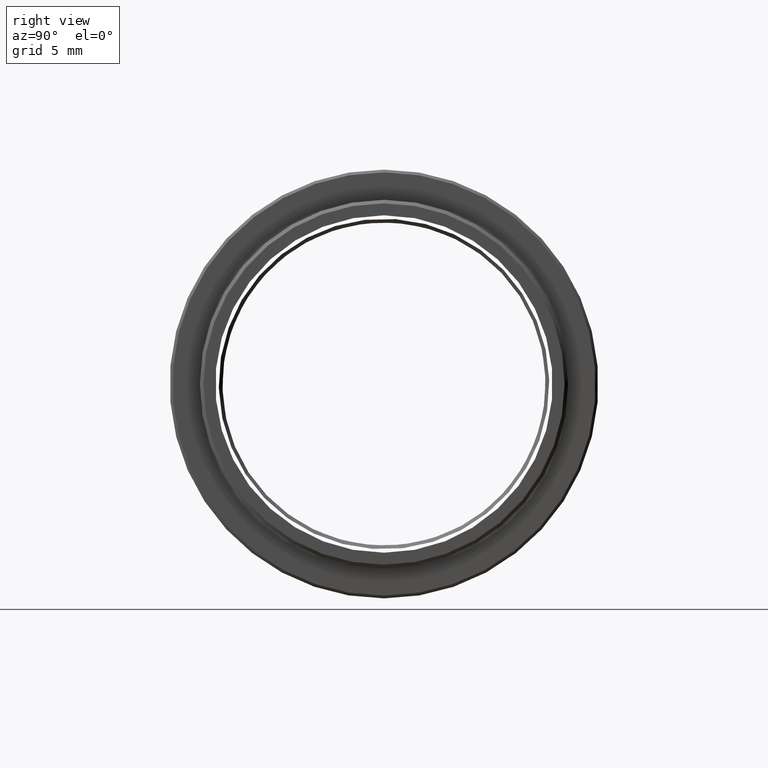
[diagram: clean part render]
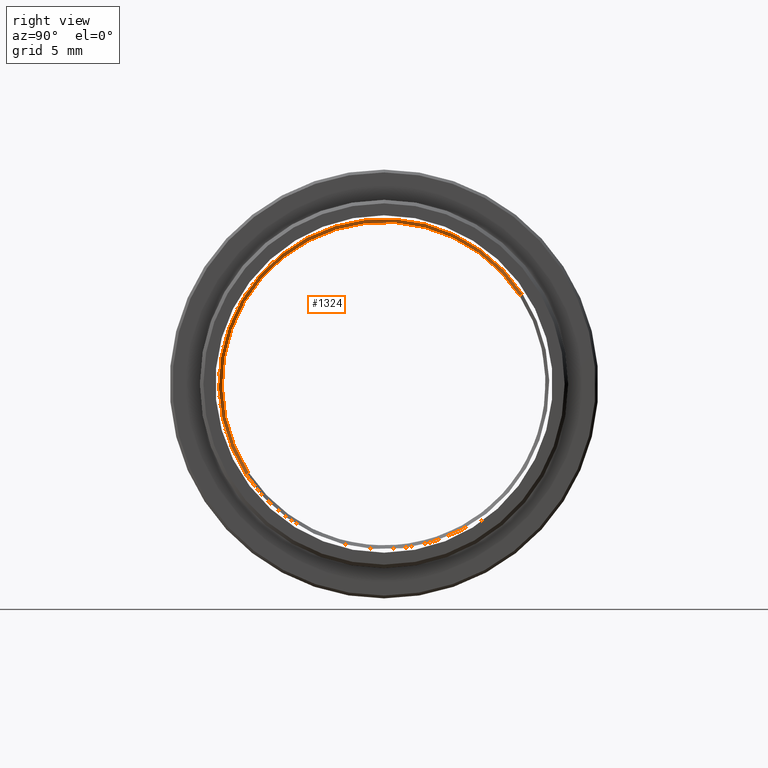
[diagram: same view with one face highlighted and labeled with its STEP entity id]
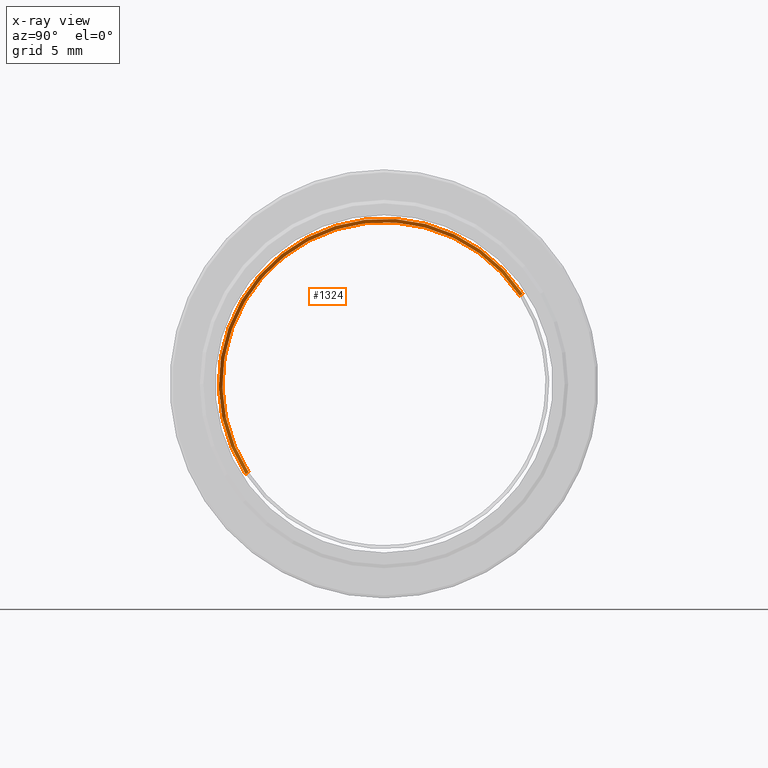
[diagram: x-ray of the same camera — body ghosted, the highlighted face saturated]
A machine part, right view. The second image highlights one B-rep face of the part: STEP entity #1324.
The next image is the same camera in x-ray: the body ghosted, the highlighted face saturated — about 0% of this face is hidden behind the body in this view.
In plain terms, the highlighted conical surface has half-angle 45 deg.
Its self-contained STEP definition (entity closure, byte-faithful):
#7 = CONICAL_SURFACE ( 'NONE', #1082, 11.75449999999998418, 0.7853981633974380649 ) ;
#37 = AXIS2_PLACEMENT_3D ( 'NONE', #98, #1065, #1542 ) ;
#98 = CARTESIAN_POINT ( 'NONE',  ( -19.92400000000001725, -20.10857142857141966, -1.761828530288947663E-16 ) ) ;
#127 = EDGE_LOOP ( 'NONE', ( #945, #160, #745, #894 ) ) ;
#139 = DIRECTION ( 'NONE',  ( 1.000000000000000000, 2.056216930877364989E-31, 4.564002453902406316E-32 ) ) ;
#160 = ORIENTED_EDGE ( 'NONE', *, *, #353, .F. ) ;
#219 = AXIS2_PLACEMENT_3D ( 'NONE', #1278, #1022, #793 ) ;
#288 = DIRECTION ( 'NONE',  ( 0.000000000000000000, 0.8379988549246821794, 0.5456719886020552357 ) ) ;
#303 = VERTEX_POINT ( 'NONE', #795 ) ;
#319 = CARTESIAN_POINT ( 'NONE',  ( -19.92400000000001725, -10.46781360209042155, 6.277683392872337897 ) ) ;
#353 = EDGE_CURVE ( 'NONE', #992, #927, #1576, .T. ) ;
#547 = FACE_OUTER_BOUND ( 'NONE', #127, .T. ) ;
#586 = VECTOR ( 'NONE', #1223, 1000.000000000000000 ) ;
#652 = CARTESIAN_POINT ( 'NONE',  ( -19.92400000000001725, -29.74932925505242309, -6.277683392872337009 ) ) ;
#721 = CARTESIAN_POINT ( 'NONE',  ( -19.67400000000001725, -29.95882896878358892, -6.414101390022848292 ) ) ;
#745 = ORIENTED_EDGE ( 'NONE', *, *, #1021, .T. ) ;
#793 = DIRECTION ( 'NONE',  ( 0.000000000000000000, -0.8379988549246821794, -0.5456719886020552357 ) ) ;
#795 = CARTESIAN_POINT ( 'NONE',  ( -19.67400000000001725, -10.25831388835925573, 6.414101390022849181 ) ) ;
#855 = CARTESIAN_POINT ( 'NONE',  ( -19.67400000000001725, -29.95882896878358892, -6.414101390022848292 ) ) ;
#874 = CARTESIAN_POINT ( 'NONE',  ( -19.67400000000001725, -20.10857142857141966, -1.761828530288944705E-16 ) ) ;
#894 = ORIENTED_EDGE ( 'NONE', *, *, #1466, .F. ) ;
#927 = VERTEX_POINT ( 'NONE', #652 ) ;
#930 = CARTESIAN_POINT ( 'NONE',  ( -19.67400000000001725, -10.25831388835925573, 6.414101390022849181 ) ) ;
#945 = ORIENTED_EDGE ( 'NONE', *, *, #1229, .F. ) ;
#986 = VECTOR ( 'NONE', #1049, 1000.000000000000000 ) ;
#992 = VERTEX_POINT ( 'NONE', #319 ) ;
#1021 = EDGE_CURVE ( 'NONE', #992, #303, #1313, .T. ) ;
#1022 = DIRECTION ( 'NONE',  ( -1.000000000000000000, -2.056216930877364989E-31, -4.564002453902406316E-32 ) ) ;
#1049 = DIRECTION ( 'NONE',  ( 0.7071067811865542341, 0.5925546729437989324, 0.3858483634440580401 ) ) ;
#1065 = DIRECTION ( 'NONE',  ( 1.000000000000000000, 2.056216930877364989E-31, 4.564002453902406316E-32 ) ) ;
#1082 = AXIS2_PLACEMENT_3D ( 'NONE', #874, #139, #288 ) ;
#1184 = VERTEX_POINT ( 'NONE', #721 ) ;
#1223 = DIRECTION ( 'NONE',  ( 0.7071067811865542341, -0.5925546729437990434, -0.3858483634440579291 ) ) ;
#1229 = EDGE_CURVE ( 'NONE', #927, #1184, #1381, .T. ) ;
#1278 = CARTESIAN_POINT ( 'NONE',  ( -19.67400000000001725, -20.10857142857141966, -1.761828530288944705E-16 ) ) ;
#1313 = LINE ( 'NONE', #930, #986 ) ;
#1324 = ADVANCED_FACE ( 'NONE', ( #547 ), #7, .F. ) ;
#1381 = LINE ( 'NONE', #855, #586 ) ;
#1466 = EDGE_CURVE ( 'NONE', #1184, #303, #1492, .T. ) ;
#1492 = CIRCLE ( 'NONE', #219, 11.75449999999998418 ) ;
#1542 = DIRECTION ( 'NONE',  ( 0.000000000000000000, -0.8379988549246821794, -0.5456719886020553467 ) ) ;
#1576 = CIRCLE ( 'NONE', #37, 11.50449999999998596 ) ;